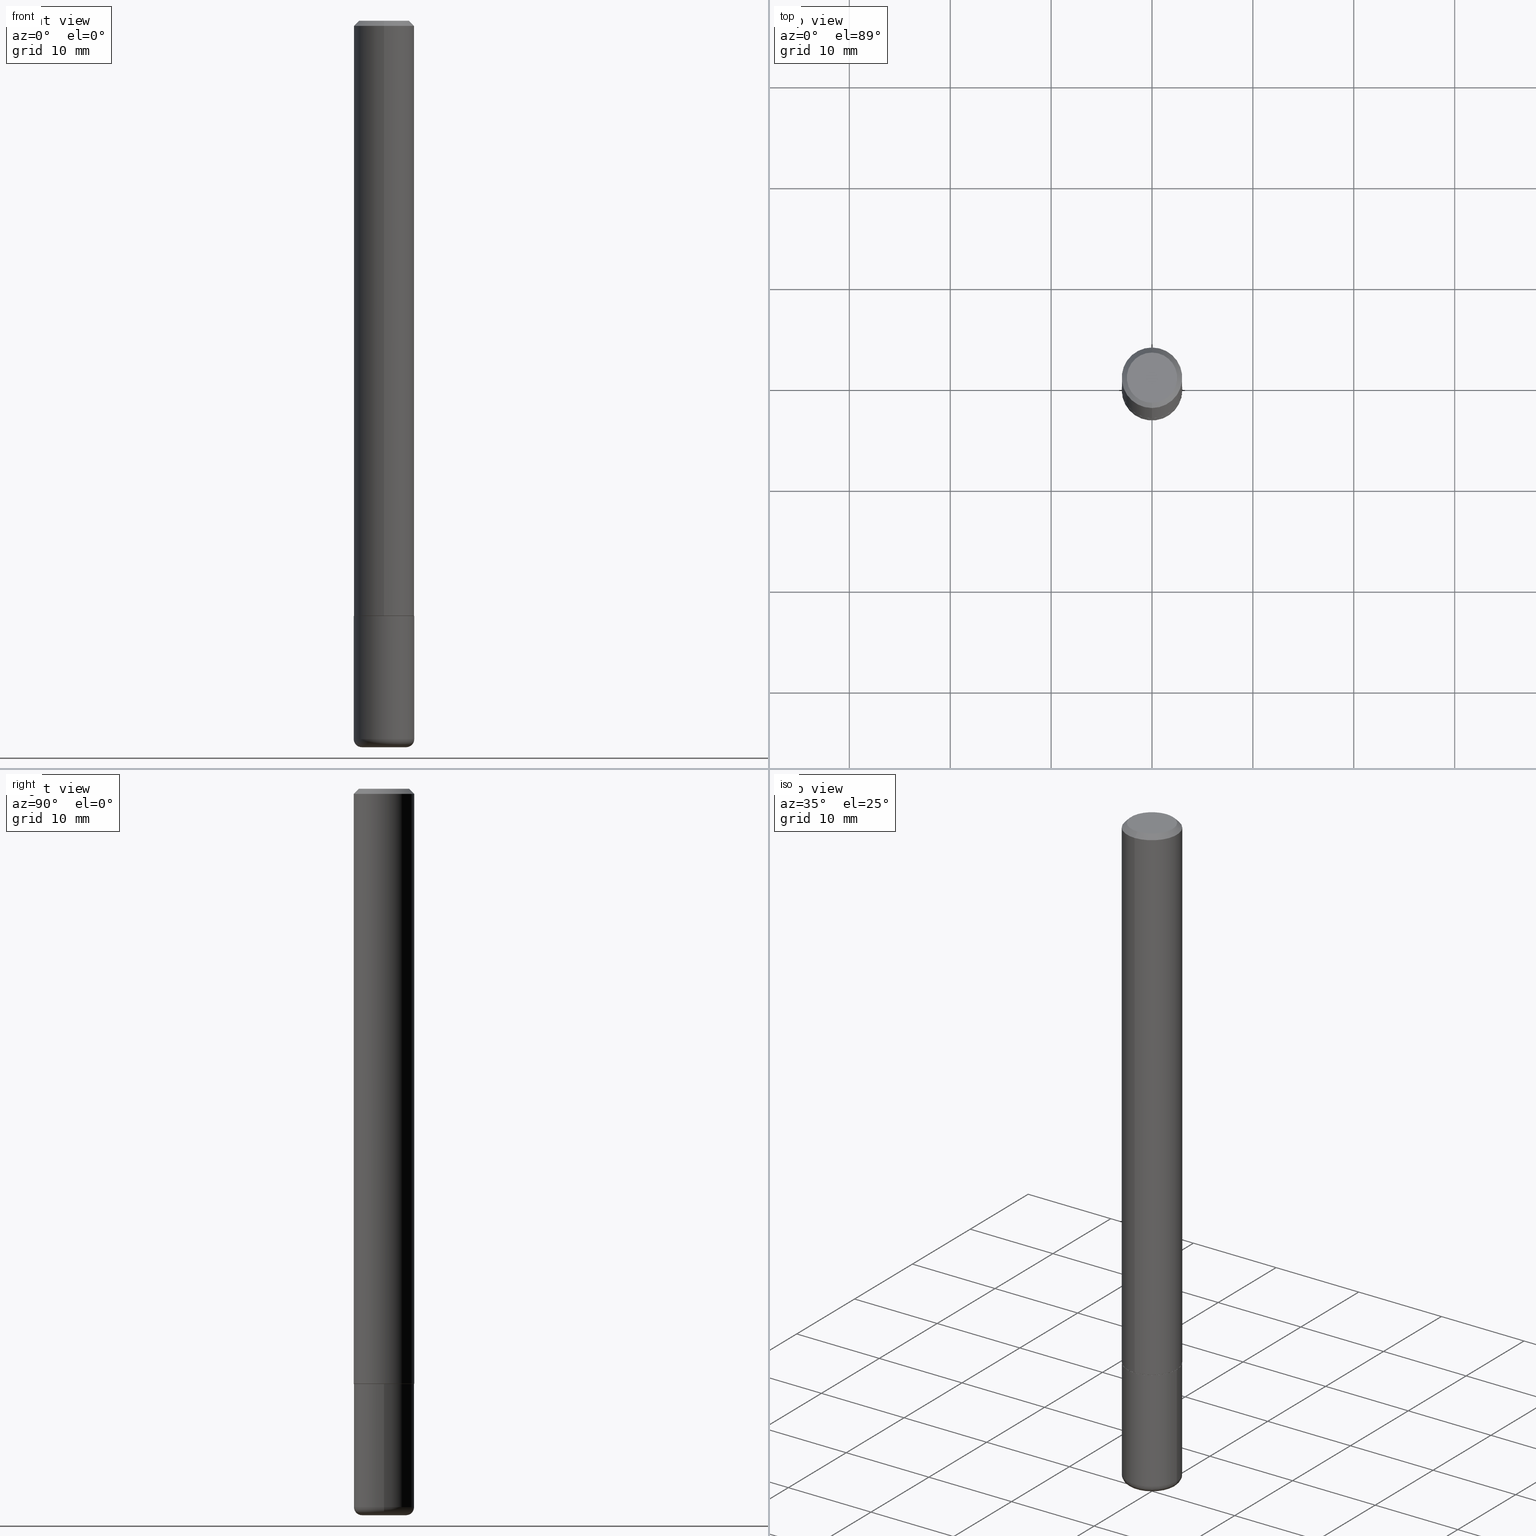
[diagram: canonical four-view strip — front | top / right | iso, engineering-drawing reading convention]
A machine part, canonical four-view strip (front | top / right | iso — engineering-drawing reading convention). The complete STEP part file that produces these views, byte-faithful:
ISO-10303-21;
HEADER;
FILE_DESCRIPTION (( 'STEP AP203' ),
    '1' );
FILE_NAME ('44842.STEP',
    '2024-03-04T09:40:37',
    ( '' ),
    ( '' ),
    'SwSTEP 2.0',
    'SolidWorks 2023',
    '' );
FILE_SCHEMA (( 'CONFIG_CONTROL_DESIGN' ));
ENDSEC;

DATA;
#1 = AXIS2_PLACEMENT_3D ( 'NONE', #377, #214, #58 ) ;
#2 = PRODUCT_DEFINITION_SHAPE ( 'NONE', 'NONE',  #360 ) ;
#3 = EDGE_CURVE ( 'NONE', #71, #354, #94, .T. ) ;
#4 = DIRECTION ( 'NONE',  ( -2.445468806185136597E-29, 3.491481338843145583E-15, 1.000000000000000000 ) ) ;
#5 = CALENDAR_DATE ( 2024, 4, 3 ) ;
#6 = ORIENTED_EDGE ( 'NONE', *, *, #128, .F. ) ;
#7 = EDGE_CURVE ( 'NONE', #286, #386, #394, .T. ) ;
#8 = AXIS2_PLACEMENT_3D ( 'NONE', #367, #305, #259 ) ;
#9 = PERSON_AND_ORGANIZATION_ROLE ( 'creator' ) ;
#10 = ORIENTED_EDGE ( 'NONE', *, *, #92, .T. ) ;
#11 = LENGTH_MEASURE_WITH_UNIT ( LENGTH_MEASURE( 0.02539999999999999897 ), #366 );
#12 = VERTEX_POINT ( 'NONE', #141 ) ;
#13 = APPLICATION_PROTOCOL_DEFINITION ( 'international standard', 'config_control_design', 1994, #118 ) ;
#14 = ORIENTED_EDGE ( 'NONE', *, *, #99, .F. ) ;
#15 = AXIS2_PLACEMENT_3D ( 'NONE', #374, #212, #146 ) ;
#16 = SECURITY_CLASSIFICATION ( '', '', #232 ) ;
#17 = CARTESIAN_POINT ( 'NONE',  ( -8.246878922347491501E-16, -0.1181000000000001632, 4.115331183362799597E-16 ) ) ;
#18 = FACE_OUTER_BOUND ( 'NONE', #346, .T. ) ;
#19 = DIRECTION ( 'NONE',  ( -2.450263031530966947E-29, 3.484615735277555768E-15, 1.000000000000000000 ) ) ;
#20 = CC_DESIGN_PERSON_AND_ORGANIZATION_ASSIGNMENT ( #166, #72, ( #315 ) ) ;
#21 = AXIS2_PLACEMENT_3D ( 'NONE', #414, #316, #381 ) ;
#22 = DIRECTION ( 'NONE',  ( 7.105427357601001859E-15, 1.000000000000000000, -3.491481338843145583E-15 ) ) ;
#23 = APPROVAL ( #328, 'UNSPECIFIED' ) ;
#24 = DIRECTION ( 'NONE',  ( 6.982962677686265922E-15, 1.000000000000000000, -3.469747663417776213E-15 ) ) ;
#25 = EDGE_CURVE ( 'NONE', #313, #71, #79, .T. ) ;
#26 = CARTESIAN_POINT ( 'NONE',  ( 5.680334943006835158E-29, -8.110012853864858834E-15, -2.322799999999999976 ) ) ;
#27 = AXIS2_PLACEMENT_3D ( 'NONE', #26, #4, #119 ) ;
#28 = FACE_OUTER_BOUND ( 'NONE', #41, .T. ) ;
#29 = AXIS2_PLACEMENT_3D ( 'NONE', #84, #80, #243 ) ;
#30 = EDGE_LOOP ( 'NONE', ( #265, #63, #10, #91 ) ) ;
#31 = AXIS2_PLACEMENT_3D ( 'NONE', #345, #89, #155 ) ;
#32 = DIRECTION ( 'NONE',  ( -2.450263031530966947E-29, 3.484615735277555768E-15, 1.000000000000000000 ) ) ;
#33 = FACE_OUTER_BOUND ( 'NONE', #104, .T. ) ;
#34 = ADVANCED_FACE ( 'NONE', ( #363 ), #231, .F. ) ;
#35 = CARTESIAN_POINT ( 'NONE',  ( 6.854893610617556719E-29, -9.786971340911220638E-15, -2.803100000000000147 ) ) ;
#36 = AXIS2_PLACEMENT_3D ( 'NONE', #76, #200, #167 ) ;
#37 = VERTEX_POINT ( 'NONE', #334 ) ;
#38 = DATE_TIME_ROLE ( 'classification_date' ) ;
#39 = EDGE_CURVE ( 'NONE', #327, #313, #135, .T. ) ;
#40 = FACE_OUTER_BOUND ( 'NONE', #126, .T. ) ;
#41 = EDGE_LOOP ( 'NONE', ( #181, #168, #156, #391 ) ) ;
#42 = VECTOR ( 'NONE', #209, 39.37007874015748143 ) ;
#43 = AXIS2_PLACEMENT_3D ( 'NONE', #348, #350, #185 ) ;
#44 = PERSON_AND_ORGANIZATION ( #78, #389 ) ;
#45 = VERTEX_POINT ( 'NONE', #388 ) ;
#46 = EDGE_LOOP ( 'NONE', ( #257, #134, #184, #251 ) ) ;
#47 = ORIENTED_EDGE ( 'NONE', *, *, #270, .F. ) ;
#48 = CONICAL_SURFACE ( 'NONE', #329, 0.1171000000000000096, 0.7853981633975507526 ) ;
#49 = CARTESIAN_POINT ( 'NONE',  ( -0.08659999999999996867, -9.114721681947535485E-15, -2.834600000000000453 ) ) ;
#50 = LINE ( 'NONE', #116, #42 ) ;
#51 = EDGE_CURVE ( 'NONE', #382, #269, #101, .T. ) ;
#52 = CARTESIAN_POINT ( 'NONE',  ( 0.1181000000000000383, -8.934700746099607097E-15, -2.322799999999999976 ) ) ;
#53 = CIRCLE ( 'NONE', #342, 0.1181000000000002881 ) ;
#54 = APPROVAL_PERSON_ORGANIZATION ( #157, #221, #132 ) ;
#55 = FACE_OUTER_BOUND ( 'NONE', #160, .T. ) ;
#56 = ADVANCED_FACE ( 'NONE', ( #40 ), #158, .F. ) ;
#57 = DIRECTION ( 'NONE',  ( 2.450263031530966947E-29, -3.484615735277555768E-15, -1.000000000000000000 ) ) ;
#58 = DIRECTION ( 'NONE',  ( 6.982962677686265922E-15, 1.000000000000000000, -3.469747663417776213E-15 ) ) ;
#59 = ORIENTED_EDGE ( 'NONE', *, *, #368, .T. ) ;
#60 = CARTESIAN_POINT ( 'NONE',  ( 8.246878922347486570E-16, 0.1180999999999999689, -0.02000000000000047226 ) ) ;
#61 = ORIENTED_EDGE ( 'NONE', *, *, #260, .T. ) ;
#62 = DIRECTION ( 'NONE',  ( -2.450263031530966947E-29, 3.484615735277555768E-15, 1.000000000000000000 ) ) ;
#63 = ORIENTED_EDGE ( 'NONE', *, *, #399, .T. ) ;
#64 = DIRECTION ( 'NONE',  ( -2.450263031530966947E-29, 3.484615735277555768E-15, 1.000000000000000000 ) ) ;
#65 = CARTESIAN_POINT ( 'NONE',  ( -8.177049295570049573E-16, -0.1171000000000081004, -2.322799999999999532 ) ) ;
#66 = ORIENTED_EDGE ( 'NONE', *, *, #187, .F. ) ;
#67 = CIRCLE ( 'NONE', #304, 0.1181000000000000383 ) ;
#68 = PERSON_AND_ORGANIZATION ( #78, #389 ) ;
#69 = DIRECTION ( 'NONE',  ( 1.000000000000000000, -6.982962677686270655E-15, 0.000000000000000000 ) ) ;
#70 = DIRECTION ( 'NONE',  ( 1.000000000000000000, 0.000000000000000000, 0.000000000000000000 ) ) ;
#71 = VERTEX_POINT ( 'NONE', #52 ) ;
#72 = PERSON_AND_ORGANIZATION_ROLE ( 'design_owner' ) ;
#73 = ORIENTED_EDGE ( 'NONE', *, *, #7, .T. ) ;
#74 = AXIS2_PLACEMENT_3D ( 'NONE', #239, #369, #337 ) ;
#75 = AXIS2_PLACEMENT_3D ( 'NONE', #371, #173, #308 ) ;
#76 = CARTESIAN_POINT ( 'NONE',  ( 6.850286386810240328E-16, 0.09810000000000017317, -3.933997113668260062E-16 ) ) ;
#77 = SHAPE_DEFINITION_REPRESENTATION ( #2, #213 ) ;
#78 = PERSON ( 'UNSPECIFIED', 'UNSPECIFIED', 'UNSPECIFIED', ('UNSPECIFIED'), ('UNSPECIFIED'), ('UNSPECIFIED') ) ;
#79 = LINE ( 'NONE', #267, #409 ) ;
#80 = DIRECTION ( 'NONE',  ( -2.450263031530966947E-29, 3.484615735277555768E-15, 1.000000000000000000 ) ) ;
#81 = AXIS2_PLACEMENT_3D ( 'NONE', #90, #250, #124 ) ;
#82 = ADVANCED_FACE ( 'NONE', ( #55 ), #375, .T. ) ;
#83 = CARTESIAN_POINT ( 'NONE',  ( 8.320455435751341841E-16, 0.1170999999999919189, -2.322799999999999976 ) ) ;
#84 = CARTESIAN_POINT ( 'NONE',  ( 4.900526063061949554E-31, -6.969231470555132589E-17, -0.02000000000000006287 ) ) ;
#85 = DIRECTION ( 'NONE',  ( -2.450263031530966947E-29, 3.484615735277555768E-15, 1.000000000000000000 ) ) ;
#86 = AXIS2_PLACEMENT_3D ( 'NONE', #285, #384, #127 ) ;
#87 = AXIS2_PLACEMENT_3D ( 'NONE', #35, #292, #153 ) ;
#88 = DIRECTION ( 'NONE',  ( -6.982962677686266711E-15, -1.000000000000000000, 2.332918867347790727E-15 ) ) ;
#89 = DIRECTION ( 'NONE',  ( 2.438088387897960049E-29, -3.491481338843145188E-15, -1.000000000000000000 ) ) ;
#90 = CARTESIAN_POINT ( 'NONE',  ( 2.526657711437494738E-45, -3.593259623818554221E-31, -1.031178154721942270E-16 ) ) ;
#91 = ORIENTED_EDGE ( 'NONE', *, *, #368, .F. ) ;
#92 = EDGE_CURVE ( 'NONE', #45, #386, #402, .T. ) ;
#93 = CARTESIAN_POINT ( 'NONE',  ( 0.1181000000000001215, -1.061165923314597048E-14, -2.803100000000000147 ) ) ;
#94 = CIRCLE ( 'NONE', #370, 0.1181000000000000383 ) ;
#95 = ORIENTED_EDGE ( 'NONE', *, *, #399, .F. ) ;
#96 = DIRECTION ( 'NONE',  ( -6.982962677686267499E-15, -1.000000000000000000, 3.484615735277555768E-15 ) ) ;
#97 = DIRECTION ( 'NONE',  ( -6.982962677686265922E-15, -1.000000000000000000, 4.626330217890358292E-15 ) ) ;
#98 = EDGE_LOOP ( 'NONE', ( #61, #272 ) ) ;
#99 = EDGE_CURVE ( 'NONE', #37, #313, #252, .T. ) ;
#100 = PERSON_AND_ORGANIZATION_ROLE ( 'classification_officer' ) ;
#101 = LINE ( 'NONE', #228, #182 ) ;
#102 = AXIS2_PLACEMENT_3D ( 'NONE', #211, #177, #244 ) ;
#103 = APPROVAL_PERSON_ORGANIZATION ( #293, #210, #299 ) ;
#104 = EDGE_LOOP ( 'NONE', ( #66, #398 ) ) ;
#105 = PERSON_AND_ORGANIZATION_ROLE ( 'creator' ) ;
#106 = ORIENTED_EDGE ( 'NONE', *, *, #301, .T. ) ;
#107 = PERSON_AND_ORGANIZATION ( #78, #389 ) ;
#108 = ORIENTED_EDGE ( 'NONE', *, *, #152, .F. ) ;
#109 = COORDINATED_UNIVERSAL_TIME_OFFSET ( 5, 0, .BEHIND. ) ;
#110 = EDGE_LOOP ( 'NONE', ( #325, #330, #151, #361 ) ) ;
#111 = FACE_OUTER_BOUND ( 'NONE', #303, .T. ) ;
#112 = ADVANCED_FACE ( 'NONE', ( #372 ), #246, .T. ) ;
#113 = AXIS2_PLACEMENT_3D ( 'NONE', #373, #401, #143 ) ;
#114 = LOCAL_TIME ( 4, 40, 37.00000000000000000, #262 ) ;
#115 = DIRECTION ( 'NONE',  ( -2.445468806185136597E-29, 3.491481338843145583E-15, 1.000000000000000000 ) ) ;
#116 = CARTESIAN_POINT ( 'NONE',  ( -0.1181000000000000105, 8.391509709326783943E-16, -5.809262341591044484E-30 ) ) ;
#117 = DIRECTION ( 'NONE',  ( -6.982962677686266711E-15, -1.000000000000000000, 2.332918867347790727E-15 ) ) ;
#118 = APPLICATION_CONTEXT ( 'configuration controlled 3d designs of mechanical parts and assemblies' ) ;
#119 = DIRECTION ( 'NONE',  ( 1.000000000000000000, -6.982962677686270655E-15, 0.000000000000000000 ) ) ;
#120 = DIRECTION ( 'NONE',  ( -6.982962677686265922E-15, -1.000000000000000000, 4.626330217890358292E-15 ) ) ;
#121 = ORIENTED_EDGE ( 'NONE', *, *, #179, .F. ) ;
#122 = ADVANCED_FACE ( 'NONE', ( #339 ), #279, .T. ) ;
#123 = DIRECTION ( 'NONE',  ( -6.982962677686265922E-15, -1.000000000000000000, 3.469747663417776213E-15 ) ) ;
#124 = DIRECTION ( 'NONE',  ( -6.982962677686267499E-15, -1.000000000000000000, 3.484615735277555768E-15 ) ) ;
#125 = VECTOR ( 'NONE', #171, 39.37007874015748143 ) ;
#126 = EDGE_LOOP ( 'NONE', ( #129, #6 ) ) ;
#127 = DIRECTION ( 'NONE',  ( 1.000000000000000000, -6.982962677686267499E-15, 4.876176775795936353E-29 ) ) ;
#128 = EDGE_CURVE ( 'NONE', #396, #382, #418, .T. ) ;
#129 = ORIENTED_EDGE ( 'NONE', *, *, #238, .F. ) ;
#130 = DATE_AND_TIME ( #140, #264 ) ;
#131 = ORIENTED_EDGE ( 'NONE', *, *, #187, .T. ) ;
#132 = APPROVAL_ROLE ( '' ) ;
#133 = CC_DESIGN_SECURITY_CLASSIFICATION ( #16, ( #282 ) ) ;
#134 = ORIENTED_EDGE ( 'NONE', *, *, #128, .T. ) ;
#135 = CIRCLE ( 'NONE', #8, 0.03150000000000022921 ) ;
#136 = COORDINATED_UNIVERSAL_TIME_OFFSET ( 5, 0, .BEHIND. ) ;
#137 = CARTESIAN_POINT ( 'NONE',  ( 5.680334943006835158E-29, -8.110012853864858834E-15, -2.322799999999999976 ) ) ;
#138 = CC_DESIGN_PERSON_AND_ORGANIZATION_ASSIGNMENT ( #390, #9, ( #360 ) ) ;
#139 = EDGE_LOOP ( 'NONE', ( #131, #317, #47, #164 ) ) ;
#140 = CALENDAR_DATE ( 2024, 4, 3 ) ;
#141 = CARTESIAN_POINT ( 'NONE',  ( 7.548582654578863449E-16, 0.09810000000000017317, -4.449586191029230457E-16 ) ) ;
#142 = CIRCLE ( 'NONE', #189, 0.08659999999999996867 ) ;
#143 = DIRECTION ( 'NONE',  ( -6.982962677686265922E-15, -1.000000000000000000, 3.484615735277555768E-15 ) ) ;
#144 = DIRECTION ( 'NONE',  ( -2.450263031530966947E-29, 3.484615735277555768E-15, 1.000000000000000000 ) ) ;
#145 = DIRECTION ( 'NONE',  ( 1.000000000000000000, -6.982962677686273021E-15, 0.000000000000000000 ) ) ;
#146 = DIRECTION ( 'NONE',  ( 1.000000000000000000, -6.982962677686270655E-15, 0.000000000000000000 ) ) ;
#147 = EDGE_CURVE ( 'NONE', #37, #354, #50, .T. ) ;
#148 = CARTESIAN_POINT ( 'NONE',  ( 6.854893610617556719E-29, -9.786971340911220638E-15, -2.803100000000000147 ) ) ;
#149 = DIRECTION ( 'NONE',  ( -2.450263031530966947E-29, 3.484615735277555768E-15, 1.000000000000000000 ) ) ;
#150 = CYLINDRICAL_SURFACE ( 'NONE', #86, 0.1181000000000000105 ) ;
#151 = ORIENTED_EDGE ( 'NONE', *, *, #347, .F. ) ;
#152 = EDGE_CURVE ( 'NONE', #269, #45, #340, .T. ) ;
#153 = DIRECTION ( 'NONE',  ( 1.000000000000000000, -6.982962677686258822E-15, 4.883557194083110659E-29 ) ) ;
#154 = CARTESIAN_POINT ( 'NONE',  ( 5.689020706608598684E-29, -8.090580814167428772E-15, -2.321799999999999642 ) ) ;
#155 = DIRECTION ( 'NONE',  ( -1.000000000000000000, 6.982962677686265922E-15, -4.876176775795935793E-29 ) ) ;
#156 = ORIENTED_EDGE ( 'NONE', *, *, #25, .T. ) ;
#157 = PERSON_AND_ORGANIZATION ( #78, #389 ) ;
#158 = PLANE ( 'NONE',  #113 ) ;
#159 = MECHANICAL_CONTEXT ( 'NONE', #118, 'mechanical' ) ;
#160 = EDGE_LOOP ( 'NONE', ( #95, #198, #59, #191 ) ) ;
#161 = ADVANCED_FACE ( 'NONE', ( #174 ), #48, .T. ) ;
#162 = APPROVAL_PERSON_ORGANIZATION ( #268, #23, #395 ) ;
#163 =( NAMED_UNIT ( * ) SI_UNIT ( $, .STERADIAN. ) SOLID_ANGLE_UNIT ( ) );
#164 = ORIENTED_EDGE ( 'NONE', *, *, #39, .F. ) ;
#165 = CC_DESIGN_DATE_AND_TIME_ASSIGNMENT ( #258, #387, ( #360 ) ) ;
#166 = PERSON_AND_ORGANIZATION ( #78, #389 ) ;
#167 = DIRECTION ( 'NONE',  ( 6.982962677686265922E-15, 1.000000000000000000, -3.484615735277555768E-15 ) ) ;
#168 = ORIENTED_EDGE ( 'NONE', *, *, #99, .T. ) ;
#169 = AXIS2_PLACEMENT_3D ( 'NONE', #240, #19, #277 ) ;
#170 = AXIS2_PLACEMENT_3D ( 'NONE', #154, #64, #97 ) ;
#171 = DIRECTION ( 'NONE',  ( -2.450263031530966667E-29, 3.484615735277555768E-15, 1.000000000000000000 ) ) ;
#172 = MANIFOLD_SOLID_BREP ( 'Body-Move/Copy2[1]', #290 ) ;
#173 = DIRECTION ( 'NONE',  ( -2.445468806185136597E-29, 3.491481338843145583E-15, 1.000000000000000000 ) ) ;
#174 = FACE_OUTER_BOUND ( 'NONE', #46, .T. ) ;
#175 = AXIS2_PLACEMENT_3D ( 'NONE', #254, #32, #96 ) ;
#176 = VECTOR ( 'NONE', #247, 39.37007874015748854 ) ;
#177 = DIRECTION ( 'NONE',  ( -2.450263031530966947E-29, 3.484615735277555768E-15, 1.000000000000000000 ) ) ;
#178 = PLANE ( 'NONE',  #397 ) ;
#179 = EDGE_CURVE ( 'NONE', #195, #37, #336, .T. ) ;
#180 = FACE_OUTER_BOUND ( 'NONE', #30, .T. ) ;
#181 = ORIENTED_EDGE ( 'NONE', *, *, #147, .F. ) ;
#182 = VECTOR ( 'NONE', #326, 39.37007874015748143 ) ;
#183 = LINE ( 'NONE', #255, #176 ) ;
#184 = ORIENTED_EDGE ( 'NONE', *, *, #51, .T. ) ;
#185 = DIRECTION ( 'NONE',  ( -6.982962677686265922E-15, -1.000000000000000000, 3.484615735277556163E-15 ) ) ;
#186 = LINE ( 'NONE', #287, #411 ) ;
#187 = EDGE_CURVE ( 'NONE', #327, #195, #355, .T. ) ;
#188 = COORDINATED_UNIVERSAL_TIME_OFFSET ( 5, 0, .BEHIND. ) ;
#189 = AXIS2_PLACEMENT_3D ( 'NONE', #248, #385, #352 ) ;
#190 = CC_DESIGN_APPROVAL ( #210, ( #360 ) ) ;
#191 = ORIENTED_EDGE ( 'NONE', *, *, #318, .T. ) ;
#192 = DATE_AND_TIME ( #356, #323 ) ;
#193 = ORIENTED_EDGE ( 'NONE', *, *, #25, .F. ) ;
#194 = ADVANCED_FACE ( 'NONE', ( #111 ), #178, .F. ) ;
#195 = VERTEX_POINT ( 'NONE', #49 ) ;
#196 = DIMENSIONAL_EXPONENTS ( 1.000000000000000000, 0.000000000000000000, 0.000000000000000000, 0.000000000000000000, 0.000000000000000000, 0.000000000000000000, 0.000000000000000000 ) ;
#197 = CALENDAR_DATE ( 2024, 4, 3 ) ;
#198 = ORIENTED_EDGE ( 'NONE', *, *, #260, .F. ) ;
#199 = CIRCLE ( 'NONE', #21, 0.1180999999999999966 ) ;
#200 = DIRECTION ( 'NONE',  ( 2.450263031530966667E-29, -3.484615735277555768E-15, -1.000000000000000000 ) ) ;
#201 = ADVANCED_FACE ( 'NONE', ( #274 ), #400, .T. ) ;
#202 = DIRECTION ( 'NONE',  ( -2.445468806185136597E-29, 3.491481338843145583E-15, 1.000000000000000000 ) ) ;
#203 = DATE_AND_TIME ( #333, #114 ) ;
#204 = CARTESIAN_POINT ( 'NONE',  ( -0.08660000000000001030, -9.171641331742973804E-15, -2.803100000000000147 ) ) ;
#205 = CC_DESIGN_APPROVAL ( #221, ( #16 ) ) ;
#206 = VECTOR ( 'NONE', #208, 39.37007874015748143 ) ;
#207 = CIRCLE ( 'NONE', #27, 0.1181000000000000383 ) ;
#208 = DIRECTION ( 'NONE',  ( 5.024295867788576727E-15, 0.7071067811866224018, 0.7071067811864726327 ) ) ;
#209 = DIRECTION ( 'NONE',  ( -2.445468806185136877E-29, 3.491481338843145188E-15, 1.000000000000000000 ) ) ;
#210 = APPROVAL ( #302, 'UNSPECIFIED' ) ;
#211 = CARTESIAN_POINT ( 'NONE',  ( 0.000000000000000000, 0.000000000000000000, 0.000000000000000000 ) ) ;
#212 = DIRECTION ( 'NONE',  ( -2.445468806185136597E-29, 3.491481338843145583E-15, 1.000000000000000000 ) ) ;
#213 = ADVANCED_BREP_SHAPE_REPRESENTATION ( '44842', ( #172, #310, #284 ), #376 ) ;
#214 = DIRECTION ( 'NONE',  ( 2.450263031530966947E-29, -3.484615735277555768E-15, -1.000000000000000000 ) ) ;
#215 = ORIENTED_EDGE ( 'NONE', *, *, #3, .T. ) ;
#216 = DIRECTION ( 'NONE',  ( 4.937700262164533843E-15, 0.7071067811865431318, -0.7071067811865517916 ) ) ;
#217 = ORIENTED_EDGE ( 'NONE', *, *, #392, .T. ) ;
#218 = AXIS2_PLACEMENT_3D ( 'NONE', #341, #144, #117 ) ;
#219 = CC_DESIGN_APPROVAL ( #23, ( #282 ) ) ;
#220 = CARTESIAN_POINT ( 'NONE',  ( 0.08659999999999996867, -1.050167757097241339E-14, -2.834600000000000453 ) ) ;
#221 = APPROVAL ( #294, 'UNSPECIFIED' ) ;
#222 = DESIGN_CONTEXT ( 'detailed design', #415, 'design' ) ;
#223 = CARTESIAN_POINT ( 'NONE',  ( 5.689020706608598684E-29, -8.090580814167428772E-15, -2.321799999999999642 ) ) ;
#224 = EDGE_CURVE ( 'NONE', #396, #286, #306, .T. ) ;
#225 = ORIENTED_EDGE ( 'NONE', *, *, #147, .T. ) ;
#226 = COORDINATED_UNIVERSAL_TIME_OFFSET ( 5, 0, .BEHIND. ) ;
#227 = TOROIDAL_SURFACE ( 'NONE', #75, 0.08660000000000001030, 0.03150000000000022921 ) ;
#228 = CARTESIAN_POINT ( 'NONE',  ( -8.177049295570049573E-16, -0.1171000000000081004, -2.322799999999999532 ) ) ;
#229 = ADVANCED_FACE ( 'NONE', ( #18 ), #227, .T. ) ;
#230 =( NAMED_UNIT ( * ) PLANE_ANGLE_UNIT ( ) SI_UNIT ( $, .RADIAN. ) );
#231 = PLANE ( 'NONE',  #36 ) ;
#232 = SECURITY_CLASSIFICATION_LEVEL ( 'unclassified' ) ;
#233 = ORIENTED_EDGE ( 'NONE', *, *, #92, .F. ) ;
#234 = AXIS2_PLACEMENT_3D ( 'NONE', #204, #22, #245 ) ;
#235 = DIRECTION ( 'NONE',  ( -2.445468806185136877E-29, 3.491481338843145188E-15, 1.000000000000000000 ) ) ;
#236 = APPROVAL_DATE_TIME ( #266, #23 ) ;
#237 = CARTESIAN_POINT ( 'NONE',  ( 8.391509709326793804E-16, 0.1181000000000001632, -4.115331183362799597E-16 ) ) ;
#238 = EDGE_CURVE ( 'NONE', #382, #396, #278, .T. ) ;
#239 = CARTESIAN_POINT ( 'NONE',  ( 0.000000000000000000, 0.000000000000000000, 0.000000000000000000 ) ) ;
#240 = CARTESIAN_POINT ( 'NONE',  ( 5.691470969640129592E-29, -8.094065429902705281E-15, -2.322799999999999976 ) ) ;
#241 = LOCAL_TIME ( 4, 40, 37.00000000000000000, #136 ) ;
#242 = ADVANCED_FACE ( 'NONE', ( #28 ), #150, .T. ) ;
#243 = DIRECTION ( 'NONE',  ( -6.982962677686265922E-15, -1.000000000000000000, 3.469747663417776213E-15 ) ) ;
#244 = DIRECTION ( 'NONE',  ( -6.982962677686265922E-15, -1.000000000000000000, 3.484615735277556163E-15 ) ) ;
#245 = DIRECTION ( 'NONE',  ( -1.000000000000000000, 7.105427357600993970E-15, 0.000000000000000000 ) ) ;
#246 = CONICAL_SURFACE ( 'NONE', #263, 0.1171000000000000096, 0.7853981633975507526 ) ;
#247 = DIRECTION ( 'NONE',  ( -4.851104656540950075E-15, -0.7071067811865480168, -0.7071067811865469066 ) ) ;
#248 = CARTESIAN_POINT ( 'NONE',  ( 6.931925878012389760E-29, -9.896953003084782463E-15, -2.834600000000000453 ) ) ;
#249 = ORIENTED_EDGE ( 'NONE', *, *, #307, .T. ) ;
#250 = DIRECTION ( 'NONE',  ( -2.450263031530966947E-29, 3.484615735277555768E-15, 1.000000000000000000 ) ) ;
#251 = ORIENTED_EDGE ( 'NONE', *, *, #301, .F. ) ;
#252 = CIRCLE ( 'NONE', #297, 0.1180999999999999966 ) ;
#253 = CIRCLE ( 'NONE', #175, 0.09810000000000017317 ) ;
#254 = CARTESIAN_POINT ( 'NONE',  ( 2.526657711437494738E-45, -3.593259623818554221E-31, -1.031178154721942270E-16 ) ) ;
#255 = CARTESIAN_POINT ( 'NONE',  ( -8.102248135368175393E-16, -0.1181000000000001077, -0.01999999999999965347 ) ) ;
#256 = CC_DESIGN_DATE_AND_TIME_ASSIGNMENT ( #192, #38, ( #16 ) ) ;
#257 = ORIENTED_EDGE ( 'NONE', *, *, #224, .F. ) ;
#258 = DATE_AND_TIME ( #197, #241 ) ;
#259 = DIRECTION ( 'NONE',  ( 1.000000000000000000, -6.982962677686297476E-15, 0.000000000000000000 ) ) ;
#260 = EDGE_CURVE ( 'NONE', #12, #380, #322, .T. ) ;
#261 = CONICAL_SURFACE ( 'NONE', #1, 0.1181000000000000383, 0.7853981633974456145 ) ;
#262 = COORDINATED_UNIVERSAL_TIME_OFFSET ( 5, 0, .BEHIND. ) ;
#263 = AXIS2_PLACEMENT_3D ( 'NONE', #311, #85, #88 ) ;
#264 = LOCAL_TIME ( 4, 40, 37.00000000000000000, #188 ) ;
#265 = ORIENTED_EDGE ( 'NONE', *, *, #276, .F. ) ;
#266 = DATE_AND_TIME ( #5, #404 ) ;
#267 = CARTESIAN_POINT ( 'NONE',  ( 0.1181000000000000105, -8.246878922347482626E-16, 5.758764772215001141E-30 ) ) ;
#268 = PERSON_AND_ORGANIZATION ( #78, #389 ) ;
#269 = VERTEX_POINT ( 'NONE', #412 ) ;
#270 = EDGE_CURVE ( 'NONE', #313, #37, #199, .T. ) ;
#271 = AXIS2_PLACEMENT_3D ( 'NONE', #403, #57, #24 ) ;
#272 = ORIENTED_EDGE ( 'NONE', *, *, #276, .T. ) ;
#273 = TOROIDAL_SURFACE ( 'NONE', #87, 0.08660000000000001030, 0.03150000000000022921 ) ;
#274 = FACE_OUTER_BOUND ( 'NONE', #332, .T. ) ;
#275 = CARTESIAN_POINT ( 'NONE',  ( 5.680334943006835158E-29, -8.110012853864858834E-15, -2.322799999999999976 ) ) ;
#276 = EDGE_CURVE ( 'NONE', #380, #12, #253, .T. ) ;
#277 = DIRECTION ( 'NONE',  ( -6.982962677686266711E-15, -1.000000000000000000, 2.332918867347790727E-15 ) ) ;
#278 = CIRCLE ( 'NONE', #169, 0.1171000000000000096 ) ;
#279 = CYLINDRICAL_SURFACE ( 'NONE', #102, 0.1181000000000001632 ) ;
#280 = CARTESIAN_POINT ( 'NONE',  ( 5.691470969640129592E-29, -8.094065429902705281E-15, -2.322799999999999976 ) ) ;
#281 = CYLINDRICAL_SURFACE ( 'NONE', #43, 0.1181000000000001632 ) ;
#282 = PRODUCT_DEFINITION_FORMATION_WITH_SPECIFIED_SOURCE ( 'ANY', '', #315, .NOT_KNOWN. ) ;
#283 = VECTOR ( 'NONE', #357, 39.37007874015748143 ) ;
#284 = AXIS2_PLACEMENT_3D ( 'NONE', #324, #331, #70 ) ;
#285 = CARTESIAN_POINT ( 'NONE',  ( 0.000000000000000000, 0.000000000000000000, 0.000000000000000000 ) ) ;
#286 = VERTEX_POINT ( 'NONE', #416 ) ;
#287 = CARTESIAN_POINT ( 'NONE',  ( 8.246878922347486570E-16, 0.1180999999999999689, -0.02000000000000047226 ) ) ;
#288 = CARTESIAN_POINT ( 'NONE',  ( -0.1181000000000000522, -8.109341126455360750E-15, -2.322799999999999976 ) ) ;
#289 = ORIENTED_EDGE ( 'NONE', *, *, #318, .F. ) ;
#290 = CLOSED_SHELL ( 'NONE', ( #201, #378, #194, #242, #229, #343 ) ) ;
#291 = CC_DESIGN_PERSON_AND_ORGANIZATION_ASSIGNMENT ( #68, #359, ( #282 ) ) ;
#292 = DIRECTION ( 'NONE',  ( -2.445468806185136597E-29, 3.491481338843145583E-15, 1.000000000000000000 ) ) ;
#293 = PERSON_AND_ORGANIZATION ( #78, #389 ) ;
#294 = APPROVAL_STATUS ( 'not_yet_approved' ) ;
#295 = EDGE_LOOP ( 'NONE', ( #300, #73, #233, #108 ) ) ;
#296 = APPROVAL_DATE_TIME ( #130, #210 ) ;
#297 = AXIS2_PLACEMENT_3D ( 'NONE', #148, #115, #145 ) ;
#298 = ORIENTED_EDGE ( 'NONE', *, *, #152, .T. ) ;
#299 = APPROVAL_ROLE ( '' ) ;
#300 = ORIENTED_EDGE ( 'NONE', *, *, #347, .T. ) ;
#301 = EDGE_CURVE ( 'NONE', #286, #269, #53, .T. ) ;
#302 = APPROVAL_STATUS ( 'not_yet_approved' ) ;
#303 = EDGE_LOOP ( 'NONE', ( #215, #217 ) ) ;
#304 = AXIS2_PLACEMENT_3D ( 'NONE', #312, #149, #123 ) ;
#305 = DIRECTION ( 'NONE',  ( -6.982962677686266711E-15, -1.000000000000000000, 3.491481338843145583E-15 ) ) ;
#306 = LINE ( 'NONE', #83, #206 ) ;
#307 = EDGE_CURVE ( 'NONE', #195, #327, #142, .T. ) ;
#308 = DIRECTION ( 'NONE',  ( 1.000000000000000000, -6.982962677686258822E-15, 4.883557194083110659E-29 ) ) ;
#309 = DIRECTION ( 'NONE',  ( -2.450263031530966947E-29, 3.484615735277555768E-15, 1.000000000000000000 ) ) ;
#310 = MANIFOLD_SOLID_BREP ( 'Body-Move/Copy2[2]', #314 ) ;
#311 = CARTESIAN_POINT ( 'NONE',  ( 5.691470969640129592E-29, -8.094065429902705281E-15, -2.322799999999999976 ) ) ;
#312 = CARTESIAN_POINT ( 'NONE',  ( 4.900526063061949554E-31, -6.969231470555132589E-17, -0.02000000000000006287 ) ) ;
#313 = VERTEX_POINT ( 'NONE', #93 ) ;
#314 = CLOSED_SHELL ( 'NONE', ( #112, #122, #410, #82, #335, #161, #56, #34 ) ) ;
#315 = PRODUCT ( '44842', '44842', '', ( #159 ) ) ;
#316 = DIRECTION ( 'NONE',  ( -2.445468806185136597E-29, 3.491481338843145583E-15, 1.000000000000000000 ) ) ;
#317 = ORIENTED_EDGE ( 'NONE', *, *, #179, .T. ) ;
#318 = EDGE_CURVE ( 'NONE', #386, #45, #67, .T. ) ;
#319 = FACE_OUTER_BOUND ( 'NONE', #351, .T. ) ;
#320 = FACE_OUTER_BOUND ( 'NONE', #139, .T. ) ;
#321 = ORIENTED_EDGE ( 'NONE', *, *, #3, .F. ) ;
#322 = CIRCLE ( 'NONE', #81, 0.09810000000000017317 ) ;
#323 = LOCAL_TIME ( 4, 40, 37.00000000000000000, #226 ) ;
#324 = CARTESIAN_POINT ( 'NONE',  ( 0.000000000000000000, 0.000000000000000000, 0.000000000000000000 ) ) ;
#325 = ORIENTED_EDGE ( 'NONE', *, *, #238, .T. ) ;
#326 = DIRECTION ( 'NONE',  ( -4.937700262165053702E-15, -0.7071067811866175168, 0.7071067811864775177 ) ) ;
#327 = VERTEX_POINT ( 'NONE', #220 ) ;
#328 = APPROVAL_STATUS ( 'not_yet_approved' ) ;
#329 = AXIS2_PLACEMENT_3D ( 'NONE', #280, #309, #407 ) ;
#330 = ORIENTED_EDGE ( 'NONE', *, *, #224, .T. ) ;
#331 = DIRECTION ( 'NONE',  ( 0.000000000000000000, 0.000000000000000000, 1.000000000000000000 ) ) ;
#332 = EDGE_LOOP ( 'NONE', ( #417, #225, #321, #193 ) ) ;
#333 = CALENDAR_DATE ( 2024, 4, 3 ) ;
#334 = CARTESIAN_POINT ( 'NONE',  ( -0.1181000000000001215, -8.947820369978543230E-15, -2.803100000000000147 ) ) ;
#335 = ADVANCED_FACE ( 'NONE', ( #319 ), #281, .T. ) ;
#336 = CIRCLE ( 'NONE', #234, 0.03150000000000022921 ) ;
#337 = DIRECTION ( 'NONE',  ( 1.000000000000000000, -6.982962677686267499E-15, 4.876176775795936353E-29 ) ) ;
#338 = APPROVAL_DATE_TIME ( #203, #221 ) ;
#339 = FACE_OUTER_BOUND ( 'NONE', #295, .T. ) ;
#340 = LINE ( 'NONE', #17, #125 ) ;
#341 = CARTESIAN_POINT ( 'NONE',  ( 5.691470969640129592E-29, -8.094065429902705281E-15, -2.322799999999999976 ) ) ;
#342 = AXIS2_PLACEMENT_3D ( 'NONE', #223, #62, #120 ) ;
#343 = ADVANCED_FACE ( 'NONE', ( #33 ), #379, .T. ) ;
#344 = DIRECTION ( 'NONE',  ( 2.438088387897960049E-29, -3.491481338843145188E-15, -1.000000000000000000 ) ) ;
#345 = CARTESIAN_POINT ( 'NONE',  ( -5.556282530701940309E-29, -2.778077822904485322E-14, -2.834600000000000453 ) ) ;
#346 = EDGE_LOOP ( 'NONE', ( #121, #249, #413, #14 ) ) ;
#347 = EDGE_CURVE ( 'NONE', #269, #286, #349, .T. ) ;
#348 = CARTESIAN_POINT ( 'NONE',  ( 0.000000000000000000, 0.000000000000000000, 0.000000000000000000 ) ) ;
#349 = CIRCLE ( 'NONE', #170, 0.1181000000000002881 ) ;
#350 = DIRECTION ( 'NONE',  ( -2.450263031530966947E-29, 3.484615735277555768E-15, 1.000000000000000000 ) ) ;
#351 = EDGE_LOOP ( 'NONE', ( #358, #106, #298, #289 ) ) ;
#352 = DIRECTION ( 'NONE',  ( 1.000000000000000000, -6.982962677686270655E-15, 0.000000000000000000 ) ) ;
#353 = CARTESIAN_POINT ( 'NONE',  ( -7.416198335591028981E-16, -0.09810000000000017317, 2.387229881585345917E-16 ) ) ;
#354 = VERTEX_POINT ( 'NONE', #288 ) ;
#355 = CIRCLE ( 'NONE', #15, 0.08659999999999996867 ) ;
#356 = CALENDAR_DATE ( 2024, 4, 3 ) ;
#357 = DIRECTION ( 'NONE',  ( -2.450263031530966667E-29, 3.484615735277555768E-15, 1.000000000000000000 ) ) ;
#358 = ORIENTED_EDGE ( 'NONE', *, *, #7, .F. ) ;
#359 = PERSON_AND_ORGANIZATION_ROLE ( 'design_supplier' ) ;
#360 = PRODUCT_DEFINITION ( 'UNKNOWN', '', #282, #222 ) ;
#361 = ORIENTED_EDGE ( 'NONE', *, *, #51, .F. ) ;
#362 =( CONVERSION_BASED_UNIT ( 'INCH', #11 ) LENGTH_UNIT ( ) NAMED_UNIT ( #196 ) );
#363 = FACE_OUTER_BOUND ( 'NONE', #98, .T. ) ;
#364 = CC_DESIGN_PERSON_AND_ORGANIZATION_ASSIGNMENT ( #107, #105, ( #282 ) ) ;
#365 = PRODUCT_RELATED_PRODUCT_CATEGORY ( 'detail', '', ( #315 ) ) ;
#366 =( LENGTH_UNIT ( ) NAMED_UNIT ( * ) SI_UNIT ( $, .METRE. ) );
#367 = CARTESIAN_POINT ( 'NONE',  ( 0.08660000000000001030, -1.039169590879885156E-14, -2.803100000000000147 ) ) ;
#368 = EDGE_CURVE ( 'NONE', #12, #386, #186, .T. ) ;
#369 = DIRECTION ( 'NONE',  ( -2.445468806185136597E-29, 3.491481338843145583E-15, 1.000000000000000000 ) ) ;
#370 = AXIS2_PLACEMENT_3D ( 'NONE', #137, #202, #69 ) ;
#371 = CARTESIAN_POINT ( 'NONE',  ( 6.854893610617556719E-29, -9.786971340911220638E-15, -2.803100000000000147 ) ) ;
#372 = FACE_OUTER_BOUND ( 'NONE', #110, .T. ) ;
#373 = CARTESIAN_POINT ( 'NONE',  ( 5.691470969640129592E-29, -8.094065429902705281E-15, -2.322799999999999976 ) ) ;
#374 = CARTESIAN_POINT ( 'NONE',  ( 6.931925878012389760E-29, -9.896953003084782463E-15, -2.834600000000000453 ) ) ;
#375 = CONICAL_SURFACE ( 'NONE', #271, 0.1181000000000000383, 0.7853981633974456145 ) ;
#376 =( GEOMETRIC_REPRESENTATION_CONTEXT ( 3 ) GLOBAL_UNCERTAINTY_ASSIGNED_CONTEXT ( ( #383 ) ) GLOBAL_UNIT_ASSIGNED_CONTEXT ( ( #362, #230, #163 ) ) REPRESENTATION_CONTEXT ( 'NONE', 'WORKASPACE' ) );
#377 = CARTESIAN_POINT ( 'NONE',  ( 4.900526063061949554E-31, -6.969231470555132589E-17, -0.02000000000000006287 ) ) ;
#378 = ADVANCED_FACE ( 'NONE', ( #320 ), #273, .T. ) ;
#379 = PLANE ( 'NONE',  #31 ) ;
#380 = VERTEX_POINT ( 'NONE', #353 ) ;
#381 = DIRECTION ( 'NONE',  ( 1.000000000000000000, -6.982962677686273021E-15, 0.000000000000000000 ) ) ;
#382 = VERTEX_POINT ( 'NONE', #65 ) ;
#383 = UNCERTAINTY_MEASURE_WITH_UNIT (LENGTH_MEASURE( 1.000000000000000082E-05 ), #362, 'distance_accuracy_value', 'NONE');
#384 = DIRECTION ( 'NONE',  ( -2.445468806185136597E-29, 3.491481338843145583E-15, 1.000000000000000000 ) ) ;
#385 = DIRECTION ( 'NONE',  ( -2.445468806185136597E-29, 3.491481338843145583E-15, 1.000000000000000000 ) ) ;
#386 = VERTEX_POINT ( 'NONE', #60 ) ;
#387 = DATE_TIME_ROLE ( 'creation_date' ) ;
#388 = CARTESIAN_POINT ( 'NONE',  ( -8.102248135368175393E-16, -0.1181000000000001077, -0.01999999999999965347 ) ) ;
#389 = ORGANIZATION ( 'UNSPECIFIED', 'UNSPECIFIED', '' ) ;
#390 = PERSON_AND_ORGANIZATION ( #78, #389 ) ;
#391 = ORIENTED_EDGE ( 'NONE', *, *, #392, .F. ) ;
#392 = EDGE_CURVE ( 'NONE', #354, #71, #207, .T. ) ;
#393 = APPLICATION_PROTOCOL_DEFINITION ( 'international standard', 'config_control_design', 1994, #415 ) ;
#394 = LINE ( 'NONE', #237, #283 ) ;
#395 = APPROVAL_ROLE ( '' ) ;
#396 = VERTEX_POINT ( 'NONE', #408 ) ;
#397 = AXIS2_PLACEMENT_3D ( 'NONE', #275, #344, #405 ) ;
#398 = ORIENTED_EDGE ( 'NONE', *, *, #307, .F. ) ;
#399 = EDGE_CURVE ( 'NONE', #380, #45, #183, .T. ) ;
#400 = CYLINDRICAL_SURFACE ( 'NONE', #74, 0.1181000000000000105 ) ;
#401 = DIRECTION ( 'NONE',  ( -2.450263031530966667E-29, 3.484615735277555768E-15, 1.000000000000000000 ) ) ;
#402 = CIRCLE ( 'NONE', #29, 0.1181000000000000383 ) ;
#403 = CARTESIAN_POINT ( 'NONE',  ( 4.900526063061949554E-31, -6.969231470555132589E-17, -0.02000000000000006287 ) ) ;
#404 = LOCAL_TIME ( 4, 40, 37.00000000000000000, #109 ) ;
#405 = DIRECTION ( 'NONE',  ( -1.000000000000000000, 6.982962677686265922E-15, -4.876176775795935793E-29 ) ) ;
#406 = CC_DESIGN_PERSON_AND_ORGANIZATION_ASSIGNMENT ( #44, #100, ( #16 ) ) ;
#407 = DIRECTION ( 'NONE',  ( -6.982962677686266711E-15, -1.000000000000000000, 2.332918867347790727E-15 ) ) ;
#408 = CARTESIAN_POINT ( 'NONE',  ( 8.355982572539356743E-16, 0.1170999999999919189, -2.322799999999999976 ) ) ;
#409 = VECTOR ( 'NONE', #235, 39.37007874015748143 ) ;
#410 = ADVANCED_FACE ( 'NONE', ( #180 ), #261, .T. ) ;
#411 = VECTOR ( 'NONE', #216, 39.37007874015748854 ) ;
#412 = CARTESIAN_POINT ( 'NONE',  ( -8.246878922346931409E-16, -0.1181000000000083788, -2.321799999999999198 ) ) ;
#413 = ORIENTED_EDGE ( 'NONE', *, *, #39, .T. ) ;
#414 = CARTESIAN_POINT ( 'NONE',  ( 6.854893610617556719E-29, -9.786971340911220638E-15, -2.803100000000000147 ) ) ;
#415 = APPLICATION_CONTEXT ( 'configuration controlled 3d designs of mechanical parts and assemblies' ) ;
#416 = CARTESIAN_POINT ( 'NONE',  ( 8.391509709327084696E-16, 0.1180999999999921973, -2.321800000000000530 ) ) ;
#417 = ORIENTED_EDGE ( 'NONE', *, *, #270, .T. ) ;
#418 = CIRCLE ( 'NONE', #218, 0.1171000000000000096 ) ;
ENDSEC;
END-ISO-10303-21;
